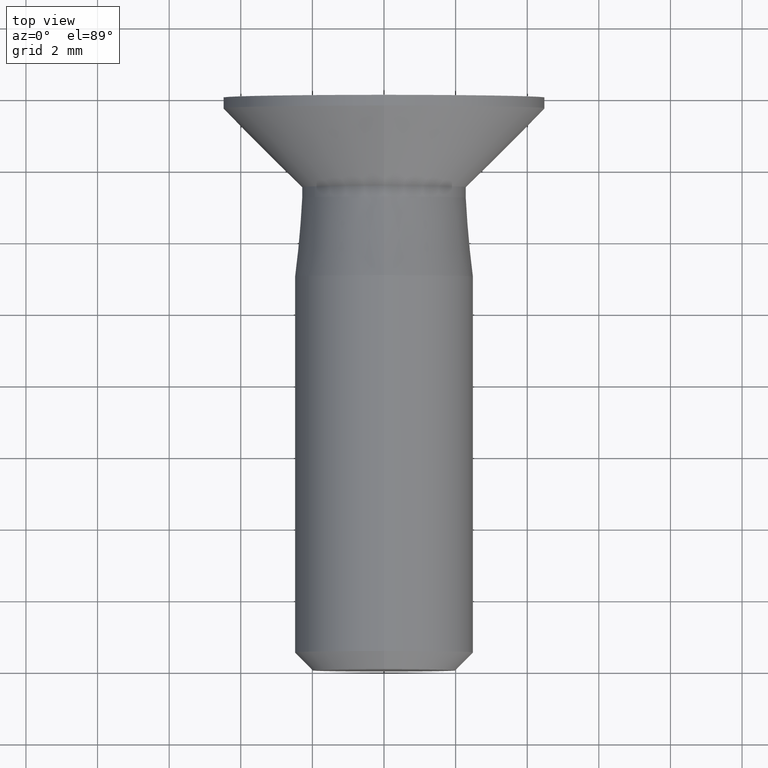
[diagram: clean part render]
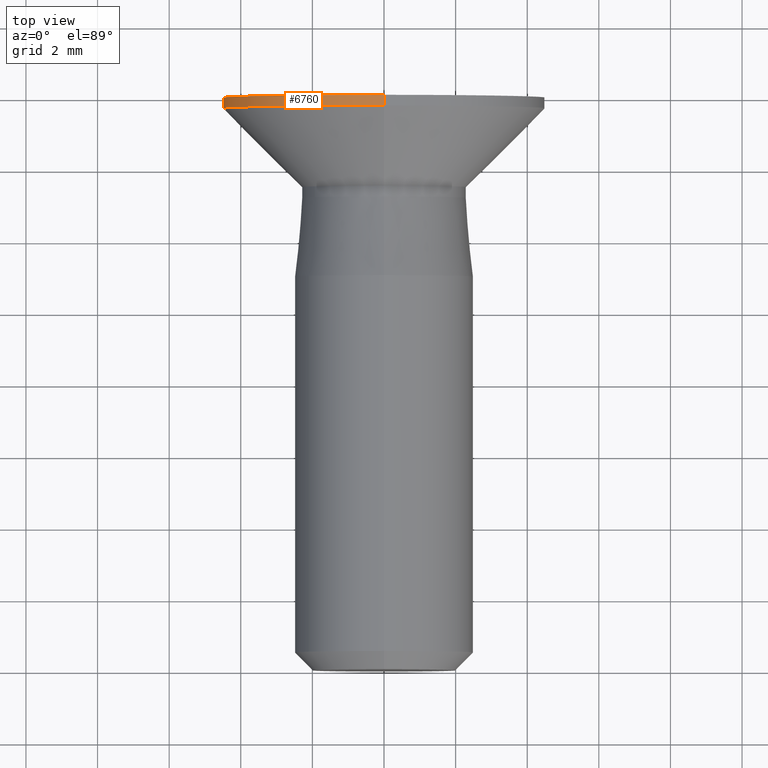
[diagram: same view with one face highlighted and labeled with its STEP entity id]
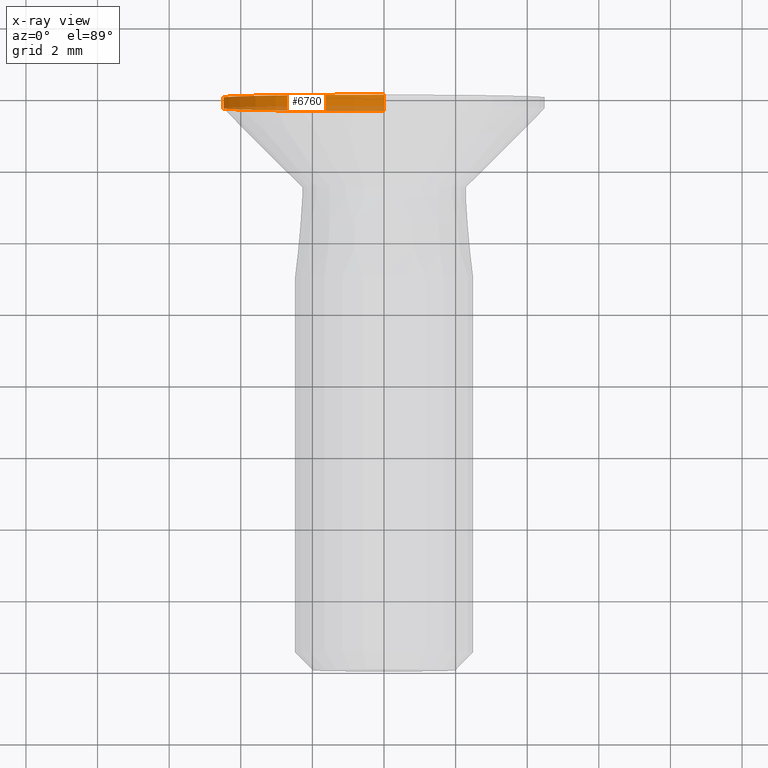
[diagram: x-ray of the same camera — body ghosted, the highlighted face saturated]
A machine part, top view. The second image highlights one B-rep face of the part: STEP entity #6760.
The next image is the same camera in x-ray: the body ghosted, the highlighted face saturated — about 29% of this face is hidden behind the body in this view.
In plain terms, the highlighted cylindrical surface (partial cylindrical patch) has radius 4.5 mm, axis along (-0, -1, -0).
Its self-contained STEP definition (entity closure, byte-faithful):
#841 = EDGE_CURVE ( 'NONE', #9584, #12388, #10889, .T. ) ;
#1011 = CIRCLE ( 'NONE', #4815, 4.500000000000000000 ) ;
#1589 = EDGE_LOOP ( 'NONE', ( #4779, #6106, #5841, #11359 ) ) ;
#1822 = CYLINDRICAL_SURFACE ( 'NONE', #9498, 4.500000000000000000 ) ;
#2131 = CARTESIAN_POINT ( 'NONE',  ( 0.000000000000000000, 0.000000000000000000, -4.500000000000000000 ) ) ;
#2328 = CARTESIAN_POINT ( 'NONE',  ( 5.510910596163088569E-16, 15.70000000000002238, 4.500000000000000000 ) ) ;
#3480 = EDGE_CURVE ( 'NONE', #9873, #6145, #6726, .T. ) ;
#3690 = VECTOR ( 'NONE', #4755, 1000.000000000000000 ) ;
#4171 = DIRECTION ( 'NONE',  ( 0.000000000000000000, 0.000000000000000000, -1.000000000000000000 ) ) ;
#4681 = DIRECTION ( 'NONE',  ( -0.000000000000000000, -1.000000000000000000, -0.000000000000000000 ) ) ;
#4755 = DIRECTION ( 'NONE',  ( -0.000000000000000000, -1.000000000000000000, -0.000000000000000000 ) ) ;
#4779 = ORIENTED_EDGE ( 'NONE', *, *, #3480, .F. ) ;
#4815 = AXIS2_PLACEMENT_3D ( 'NONE', #11641, #10487, #4858 ) ;
#4858 = DIRECTION ( 'NONE',  ( 0.000000000000000000, 0.000000000000000000, -1.000000000000000000 ) ) ;
#5003 = EDGE_CURVE ( 'NONE', #9873, #9584, #6876, .T. ) ;
#5744 = CARTESIAN_POINT ( 'NONE',  ( 0.000000000000000000, 16.00000000000000000, -4.500000000000000000 ) ) ;
#5841 = ORIENTED_EDGE ( 'NONE', *, *, #841, .T. ) ;
#6106 = ORIENTED_EDGE ( 'NONE', *, *, #5003, .T. ) ;
#6145 = VERTEX_POINT ( 'NONE', #2328 ) ;
#6726 = LINE ( 'NONE', #8333, #3690 ) ;
#6760 = ADVANCED_FACE ( 'NONE', ( #11844 ), #1822, .T. ) ;
#6876 = CIRCLE ( 'NONE', #13415, 4.500000000000000000 ) ;
#7071 = CARTESIAN_POINT ( 'NONE',  ( 0.000000000000000000, 0.000000000000000000, 0.000000000000000000 ) ) ;
#8333 = CARTESIAN_POINT ( 'NONE',  ( 5.510910596163088569E-16, 0.000000000000000000, 4.500000000000000000 ) ) ;
#8357 = CARTESIAN_POINT ( 'NONE',  ( 0.000000000000000000, 15.70000000000002238, -4.500000000000000000 ) ) ;
#9498 = AXIS2_PLACEMENT_3D ( 'NONE', #7071, #4681, #12614 ) ;
#9584 = VERTEX_POINT ( 'NONE', #5744 ) ;
#9873 = VERTEX_POINT ( 'NONE', #12121 ) ;
#10487 = DIRECTION ( 'NONE',  ( -0.000000000000000000, -1.000000000000000000, -0.000000000000000000 ) ) ;
#10889 = LINE ( 'NONE', #2131, #12844 ) ;
#11359 = ORIENTED_EDGE ( 'NONE', *, *, #13879, .F. ) ;
#11384 = DIRECTION ( 'NONE',  ( -0.000000000000000000, -1.000000000000000000, -0.000000000000000000 ) ) ;
#11641 = CARTESIAN_POINT ( 'NONE',  ( 0.000000000000000000, 15.70000000000002238, 0.000000000000000000 ) ) ;
#11844 = FACE_OUTER_BOUND ( 'NONE', #1589, .T. ) ;
#12121 = CARTESIAN_POINT ( 'NONE',  ( 5.510910596163088569E-16, 16.00000000000000000, 4.500000000000000000 ) ) ;
#12143 = CARTESIAN_POINT ( 'NONE',  ( 0.000000000000000000, 16.00000000000000000, 0.000000000000000000 ) ) ;
#12388 = VERTEX_POINT ( 'NONE', #8357 ) ;
#12614 = DIRECTION ( 'NONE',  ( 0.000000000000000000, 0.000000000000000000, -1.000000000000000000 ) ) ;
#12844 = VECTOR ( 'NONE', #11384, 1000.000000000000000 ) ;
#13415 = AXIS2_PLACEMENT_3D ( 'NONE', #12143, #14526, #4171 ) ;
#13879 = EDGE_CURVE ( 'NONE', #6145, #12388, #1011, .T. ) ;
#14526 = DIRECTION ( 'NONE',  ( -0.000000000000000000, -1.000000000000000000, -0.000000000000000000 ) ) ;